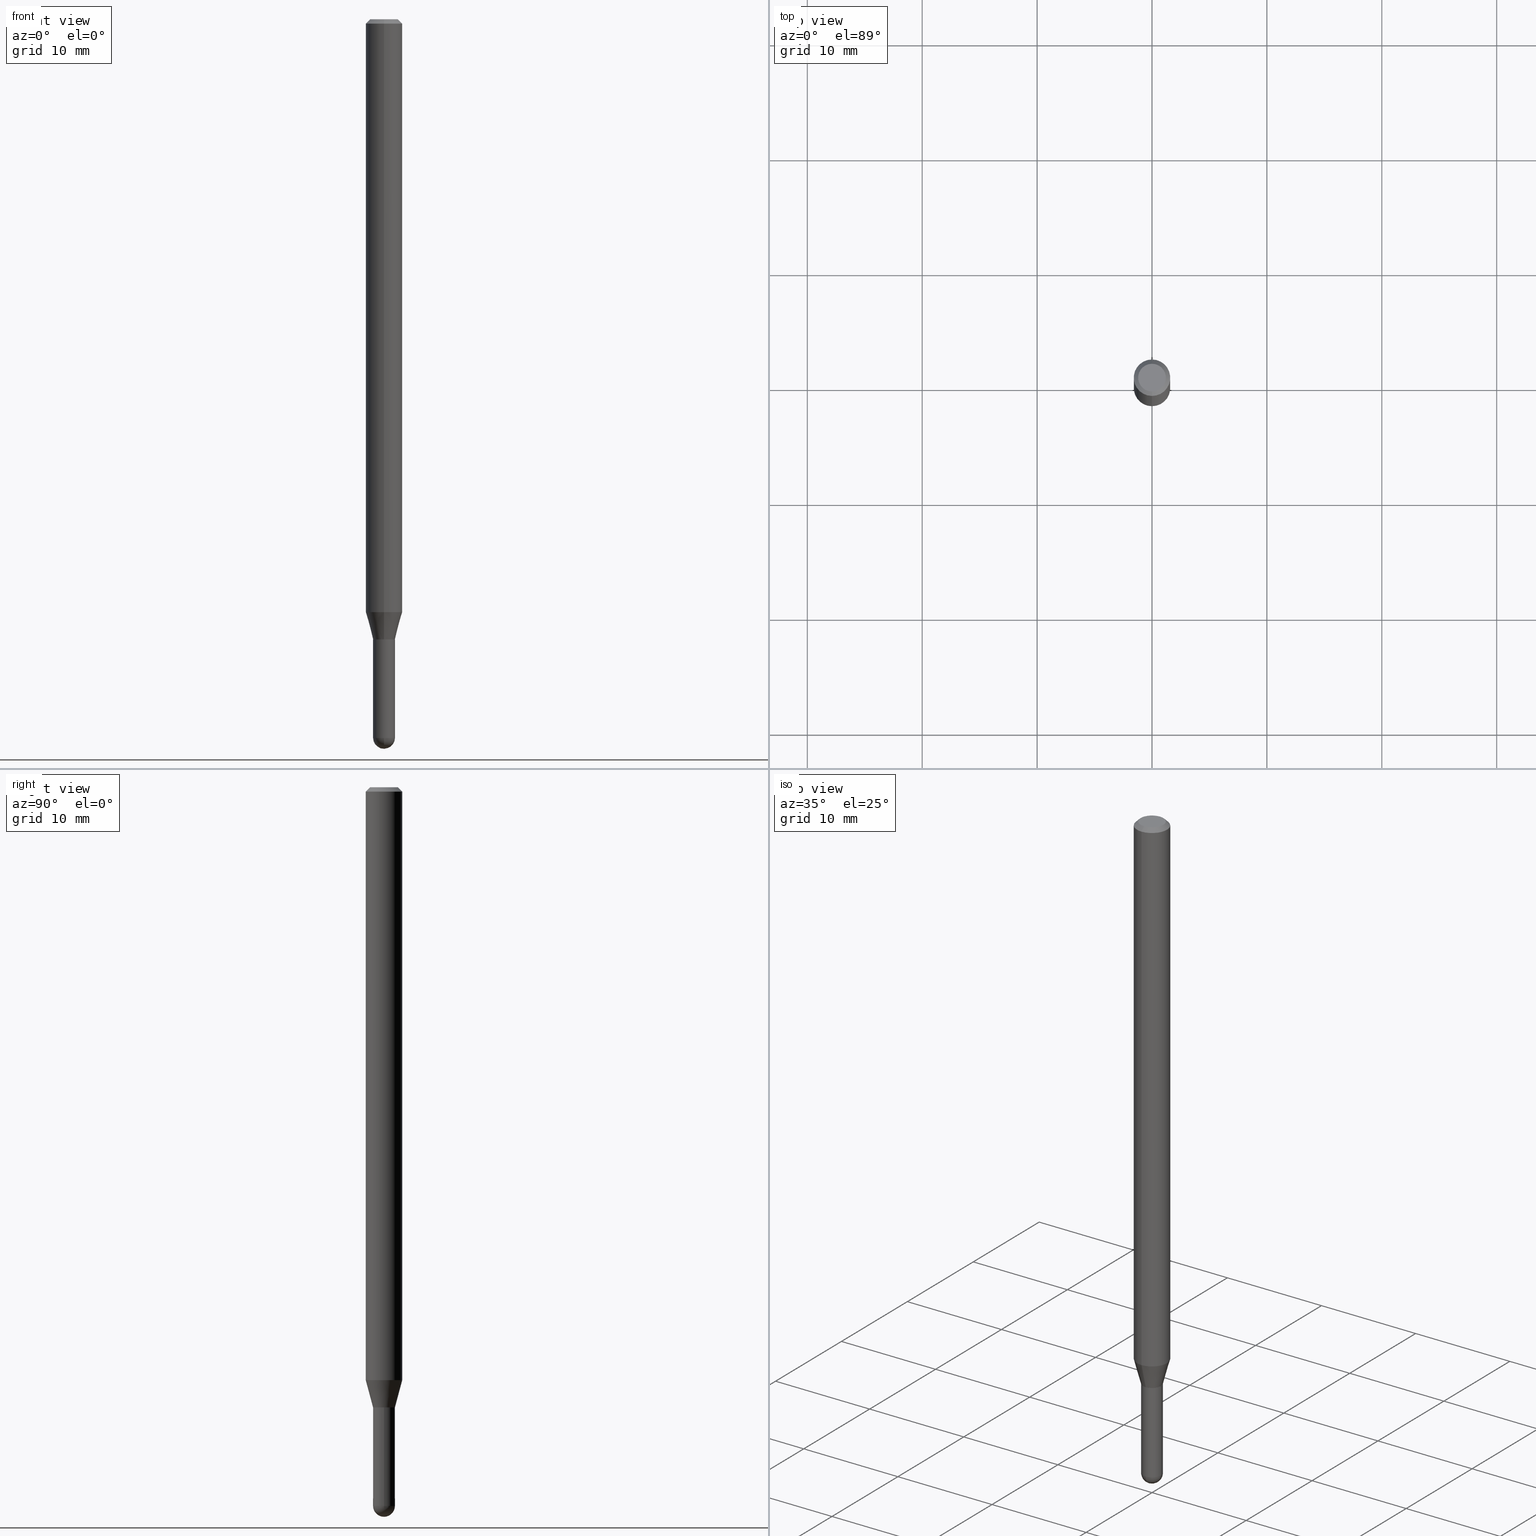
[diagram: canonical four-view strip — front | top / right | iso, engineering-drawing reading convention]
A machine part, canonical four-view strip (front | top / right | iso — engineering-drawing reading convention). The complete STEP part file that produces these views, byte-faithful:
ISO-10303-21;
HEADER;
FILE_DESCRIPTION (( 'STEP AP203' ),
    '1' );
FILE_NAME ('04470.STEP',
    '2024-03-08T19:51:15',
    ( '' ),
    ( '' ),
    'SwSTEP 2.0',
    'SolidWorks 2023',
    '' );
FILE_SCHEMA (( 'CONFIG_CONTROL_DESIGN' ));
ENDSEC;

DATA;
#1 = AXIS2_PLACEMENT_3D ( 'NONE', #271, #395, #276 ) ;
#2 = CARTESIAN_POINT ( 'NONE',  ( 3.316907271900976096E-16, 0.04749999999999999362, -1.985928096986750781E-16 ) ) ;
#3 = ORIENTED_EDGE ( 'NONE', *, *, #273, .F. ) ;
#4 = CYLINDRICAL_SURFACE ( 'NONE', #15, 0.03750000000000005412 ) ;
#5 = SHAPE_DEFINITION_REPRESENTATION ( #138, #70 ) ;
#6 = ORIENTED_EDGE ( 'NONE', *, *, #462, .F. ) ;
#7 = DIRECTION ( 'NONE',  ( -6.982962677686265133E-15, -1.000000000000000000, 0.000000000000000000 ) ) ;
#8 = PERSON_AND_ORGANIZATION_ROLE ( 'classification_officer' ) ;
#9 = VERTEX_POINT ( 'NONE', #422 ) ;
#10 = CIRCLE ( 'NONE', #150, 0.06250000000000000000 ) ;
#11 = ORIENTED_EDGE ( 'NONE', *, *, #103, .T. ) ;
#12 = ORIENTED_EDGE ( 'NONE', *, *, #427, .T. ) ;
#13 = VERTEX_POINT ( 'NONE', #185 ) ;
#14 = CARTESIAN_POINT ( 'NONE',  ( 5.196788090088073163E-29, -7.419158867758890196E-15, -2.125000000000000444 ) ) ;
#15 = AXIS2_PLACEMENT_3D ( 'NONE', #101, #171, #141 ) ;
#16 = CARTESIAN_POINT ( 'NONE',  ( -2.618611004131824438E-16, -0.03750000000000733302, -2.125000000000000000 ) ) ;
#17 = ORIENTED_EDGE ( 'NONE', *, *, #410, .F. ) ;
#18 = FACE_OUTER_BOUND ( 'NONE', #348, .T. ) ;
#19 = DIRECTION ( 'NONE',  ( -6.982962677686266711E-15, -1.000000000000000000, 0.000000000000000000 ) ) ;
#20 = EDGE_LOOP ( 'NONE', ( #89, #132, #6, #368 ) ) ;
#21 = ORIENTED_EDGE ( 'NONE', *, *, #118, .F. ) ;
#22 = DIRECTION ( 'NONE',  ( -4.937700262164674260E-15, -0.7071067811865632269, 0.7071067811865319186 ) ) ;
#23 = CIRCLE ( 'NONE', #298, 0.03699999999999999817 ) ;
#24 = PRODUCT_DEFINITION_FORMATION_WITH_SPECIFIED_SOURCE ( 'ANY', '', #300, .NOT_KNOWN. ) ;
#25 = ORIENTED_EDGE ( 'NONE', *, *, #177, .T. ) ;
#26 = DATE_AND_TIME ( #423, #466 ) ;
#27 = FACE_OUTER_BOUND ( 'NONE', #483, .T. ) ;
#28 = DIRECTION ( 'NONE',  ( -2.445547336512033885E-29, 3.491368878945359605E-15, 1.000000000000000000 ) ) ;
#29 = DIRECTION ( 'NONE',  ( 6.982962677686265922E-15, 1.000000000000000000, -3.483106191921935554E-15 ) ) ;
#30 = LENGTH_MEASURE_WITH_UNIT ( LENGTH_MEASURE( 0.02539999999999999897 ), #316 );
#31 = CIRCLE ( 'NONE', #1, 0.03749999999999991535 ) ;
#32 = DIRECTION ( 'NONE',  ( -2.445468806185136877E-29, 3.491481338843145188E-15, 1.000000000000000000 ) ) ;
#33 = DIRECTION ( 'NONE',  ( -6.982962677686265922E-15, -1.000000000000000000, 0.000000000000000000 ) ) ;
#34 = DIRECTION ( 'NONE',  ( -2.445547336512034446E-29, 3.491368878945359210E-15, 1.000000000000000000 ) ) ;
#35 = DIRECTION ( 'NONE',  ( -1.000000000000000000, 6.982962677686265922E-15, -4.883557194083112901E-29 ) ) ;
#36 = APPROVAL_ROLE ( '' ) ;
#37 = AXIS2_PLACEMENT_3D ( 'NONE', #498, #119, #205 ) ;
#38 = FACE_OUTER_BOUND ( 'NONE', #413, .T. ) ;
#39 = VECTOR ( 'NONE', #126, 39.37007874015748143 ) ;
#40 = PERSON_AND_ORGANIZATION ( #135, #174 ) ;
#41 = DIRECTION ( 'NONE',  ( 6.982962677686265133E-15, 1.000000000000000000, 0.000000000000000000 ) ) ;
#42 = CARTESIAN_POINT ( 'NONE',  ( -4.287811248607203282E-16, -0.06250000000000005551, -0.01499999999999984852 ) ) ;
#43 = CALENDAR_DATE ( 2024, 8, 3 ) ;
#44 = EDGE_LOOP ( 'NONE', ( #297, #128, #151, #377, #136 ) ) ;
#45 = CARTESIAN_POINT ( 'NONE',  ( 5.196788090088073163E-29, -7.419158867758890196E-15, -2.125000000000000444 ) ) ;
#46 = EDGE_LOOP ( 'NONE', ( #21, #253, #147, #315 ) ) ;
#47 = FACE_OUTER_BOUND ( 'NONE', #142, .T. ) ;
#48 = EDGE_CURVE ( 'NONE', #9, #226, #148, .T. ) ;
#49 = ORIENTED_EDGE ( 'NONE', *, *, #508, .T. ) ;
#50 = ORIENTED_EDGE ( 'NONE', *, *, #72, .F. ) ;
#51 = FACE_OUTER_BOUND ( 'NONE', #194, .T. ) ;
#52 = ORIENTED_EDGE ( 'NONE', *, *, #345, .T. ) ;
#53 = PLANE ( 'NONE',  #233 ) ;
#54 = DIRECTION ( 'NONE',  ( -1.000000000000000000, 7.105427357601001070E-15, -4.926315508542082329E-29 ) ) ;
#55 = AXIS2_PLACEMENT_3D ( 'NONE', #83, #246, #7 ) ;
#56 = AXIS2_PLACEMENT_3D ( 'NONE', #366, #482, #378 ) ;
#57 = LINE ( 'NONE', #374, #487 ) ;
#58 = EDGE_CURVE ( 'NONE', #252, #478, #306, .T. ) ;
#59 = FACE_OUTER_BOUND ( 'NONE', #222, .T. ) ;
#60 = DIRECTION ( 'NONE',  ( 4.937700262164548042E-15, 0.7071067811865451302, -0.7071067811865499042 ) ) ;
#61 = DIRECTION ( 'NONE',  ( -6.982962677686265922E-15, -1.000000000000000000, 4.370956789862821150E-15 ) ) ;
#62 = CC_DESIGN_PERSON_AND_ORGANIZATION_ASSIGNMENT ( #468, #504, ( #300 ) ) ;
#63 = ORIENTED_EDGE ( 'NONE', *, *, #279, .F. ) ;
#64 = MECHANICAL_CONTEXT ( 'NONE', #106, 'mechanical' ) ;
#65 = VECTOR ( 'NONE', #309, 39.37007874015748143 ) ;
#66 = AXIS2_PLACEMENT_3D ( 'NONE', #394, #35, #359 ) ;
#67 = CC_DESIGN_APPROVAL ( #295, ( #354 ) ) ;
#68 = VERTEX_POINT ( 'NONE', #102 ) ;
#69 = FACE_OUTER_BOUND ( 'NONE', #46, .T. ) ;
#70 = ADVANCED_BREP_SHAPE_REPRESENTATION ( '04470', ( #181, #182, #95 ), #333 ) ;
#71 = DIRECTION ( 'NONE',  ( -6.982962677686266711E-15, -1.000000000000000000, 3.491368878945359605E-15 ) ) ;
#72 = EDGE_CURVE ( 'NONE', #478, #407, #225, .T. ) ;
#73 = DIRECTION ( 'NONE',  ( -6.982962677686265922E-15, -1.000000000000000000, 3.491368878945359605E-15 ) ) ;
#74 = LINE ( 'NONE', #440, #400 ) ;
#75 = APPLICATION_PROTOCOL_DEFINITION ( 'international standard', 'config_control_design', 1994, #106 ) ;
#76 = CLOSED_SHELL ( 'NONE', ( #212, #100, #296, #193, #200 ) ) ;
#77 = AXIS2_PLACEMENT_3D ( 'NONE', #471, #80, #352 ) ;
#78 = CARTESIAN_POINT ( 'NONE',  ( -2.618611004132353468E-16, -0.03750000000000005412, 1.309263329604511430E-16 ) ) ;
#79 = ADVANCED_FACE ( 'NONE', ( #59 ), #228, .T. ) ;
#80 = DIRECTION ( 'NONE',  ( -2.445547336512034446E-29, 3.491368878945359210E-15, 1.000000000000000000 ) ) ;
#81 = CARTESIAN_POINT ( 'NONE',  ( 0.000000000000000000, 0.000000000000000000, 0.000000000000000000 ) ) ;
#82 = PERSON_AND_ORGANIZATION ( #135, #174 ) ;
#83 = CARTESIAN_POINT ( 'NONE',  ( 5.196788090088073163E-29, -7.419158867758890196E-15, -2.125000000000000444 ) ) ;
#84 = VECTOR ( 'NONE', #292, 39.37007874015748143 ) ;
#85 = APPROVAL_STATUS ( 'not_yet_approved' ) ;
#86 = VECTOR ( 'NONE', #203, 39.37007874015748143 ) ;
#87 = ORIENTED_EDGE ( 'NONE', *, *, #90, .F. ) ;
#88 = DIRECTION ( 'NONE',  ( 1.000000000000000000, -6.982962677686266711E-15, 4.876176775795935793E-29 ) ) ;
#89 = ORIENTED_EDGE ( 'NONE', *, *, #273, .T. ) ;
#90 = EDGE_CURVE ( 'NONE', #252, #169, #416, .T. ) ;
#91 = EDGE_CURVE ( 'NONE', #99, #96, #502, .T. ) ;
#92 = VERTEX_POINT ( 'NONE', #157 ) ;
#93 = ORIENTED_EDGE ( 'NONE', *, *, #177, .F. ) ;
#94 = AXIS2_PLACEMENT_3D ( 'NONE', #187, #54, #403 ) ;
#95 = AXIS2_PLACEMENT_3D ( 'NONE', #111, #195, #387 ) ;
#96 = VERTEX_POINT ( 'NONE', #198 ) ;
#97 = DIRECTION ( 'NONE',  ( -2.445547336512034446E-29, 3.491368878945359210E-15, 1.000000000000000000 ) ) ;
#98 = CARTESIAN_POINT ( 'NONE',  ( 4.440892098501120186E-16, 0.06249999999999287376, -2.031698729810781145 ) ) ;
#99 = VERTEX_POINT ( 'NONE', #510 ) ;
#100 = ADVANCED_FACE ( 'NONE', ( #506 ), #163, .T. ) ;
#101 = CARTESIAN_POINT ( 'NONE',  ( 0.000000000000000000, 0.000000000000000000, 0.000000000000000000 ) ) ;
#102 = CARTESIAN_POINT ( 'NONE',  ( -2.618611004131853034E-16, -0.03750000000000774242, -2.124500000000000277 ) ) ;
#103 = EDGE_CURVE ( 'NONE', #226, #408, #74, .T. ) ;
#104 = AXIS2_PLACEMENT_3D ( 'NONE', #238, #115, #29 ) ;
#105 = APPROVAL_PERSON_ORGANIZATION ( #239, #266, #278 ) ;
#106 = APPLICATION_CONTEXT ( 'configuration controlled 3d designs of mechanical parts and assemblies' ) ;
#107 = ORIENTED_EDGE ( 'NONE', *, *, #170, .F. ) ;
#108 = CARTESIAN_POINT ( 'NONE',  ( 3.668321004768067731E-31, -5.237053318418061988E-17, -0.01500000000000006710 ) ) ;
#109 = ORIENTED_EDGE ( 'NONE', *, *, #161, .F. ) ;
#110 = ORIENTED_EDGE ( 'NONE', *, *, #367, .F. ) ;
#111 = CARTESIAN_POINT ( 'NONE',  ( 0.000000000000000000, 0.000000000000000000, 0.000000000000000000 ) ) ;
#112 = AXIS2_PLACEMENT_3D ( 'NONE', #388, #280, #469 ) ;
#113 = AXIS2_PLACEMENT_3D ( 'NONE', #303, #257, #362 ) ;
#114 = AXIS2_PLACEMENT_3D ( 'NONE', #189, #149, #191 ) ;
#115 = DIRECTION ( 'NONE',  ( 2.445547336512034446E-29, -3.491368878945359210E-15, -1.000000000000000000 ) ) ;
#116 = DIRECTION ( 'NONE',  ( 6.982962677686265922E-15, 1.000000000000000000, -3.483106191921935554E-15 ) ) ;
#117 = ADVANCED_FACE ( 'NONE', ( #465 ), #325, .T. ) ;
#118 = EDGE_CURVE ( 'NONE', #484, #218, #289, .T. ) ;
#119 = DIRECTION ( 'NONE',  ( -2.445468806185136597E-29, 3.491481338843145583E-15, 1.000000000000000000 ) ) ;
#120 = APPROVAL_STATUS ( 'not_yet_approved' ) ;
#121 = CARTESIAN_POINT ( 'NONE',  ( 6.112068578670630349E-29, -8.730999559856264176E-15, -2.500000000000000000 ) ) ;
#122 = LOCAL_TIME ( 14, 51, 15.00000000000000000, #512 ) ;
#123 = CARTESIAN_POINT ( 'NONE',  ( 1.601969866629184356E-45, -2.287041290860680878E-31, -6.550557589754105084E-17 ) ) ;
#124 = DIRECTION ( 'NONE',  ( -6.982962677686265922E-15, -1.000000000000000000, 3.491368878945359210E-15 ) ) ;
#125 = CALENDAR_DATE ( 2024, 8, 3 ) ;
#126 = DIRECTION ( 'NONE',  ( -1.807323732225382204E-15, -0.2588190451025256245, 0.9659258262890669799 ) ) ;
#127 = PERSON_AND_ORGANIZATION ( #135, #174 ) ;
#128 = ORIENTED_EDGE ( 'NONE', *, *, #265, .T. ) ;
#129 = CIRCLE ( 'NONE', #419, 0.06250000000000000000 ) ;
#130 = CARTESIAN_POINT ( 'NONE',  ( -0.03749999999999999861, -7.742131795061429304E-15, -2.125000000000000000 ) ) ;
#131 = CC_DESIGN_APPROVAL ( #428, ( #24 ) ) ;
#132 = ORIENTED_EDGE ( 'NONE', *, *, #91, .T. ) ;
#133 = VERTEX_POINT ( 'NONE', #441 ) ;
#134 = VERTEX_POINT ( 'NONE', #121 ) ;
#135 = PERSON ( 'UNSPECIFIED', 'UNSPECIFIED', 'UNSPECIFIED', ('UNSPECIFIED'), ('UNSPECIFIED'), ('UNSPECIFIED') ) ;
#136 = ORIENTED_EDGE ( 'NONE', *, *, #503, .F. ) ;
#137 = AXIS2_PLACEMENT_3D ( 'NONE', #397, #166, #234 ) ;
#138 = PRODUCT_DEFINITION_SHAPE ( 'NONE', 'NONE',  #357 ) ;
#139 = CARTESIAN_POINT ( 'NONE',  ( -0.03749999999999999861, -7.742131795061429304E-15, -2.462500000000000355 ) ) ;
#140 = ORIENTED_EDGE ( 'NONE', *, *, #118, .T. ) ;
#141 = DIRECTION ( 'NONE',  ( -6.982962677686265922E-15, -1.000000000000000000, 3.491368878945358816E-15 ) ) ;
#142 = EDGE_LOOP ( 'NONE', ( #304, #11, #379, #347 ) ) ;
#143 = EDGE_CURVE ( 'NONE', #486, #252, #199, .T. ) ;
#144 = ADVANCED_FACE ( 'NONE', ( #356 ), #209, .T. ) ;
#145 = LINE ( 'NONE', #42, #192 ) ;
#146 = ADVANCED_FACE ( 'NONE', ( #429 ), #236, .F. ) ;
#147 = ORIENTED_EDGE ( 'NONE', *, *, #433, .T. ) ;
#148 = CIRCLE ( 'NONE', #436, 0.06250000000000000000 ) ;
#149 = DIRECTION ( 'NONE',  ( -2.445547336512034446E-29, 3.491368878945359210E-15, 1.000000000000000000 ) ) ;
#150 = AXIS2_PLACEMENT_3D ( 'NONE', #108, #97, #152 ) ;
#151 = ORIENTED_EDGE ( 'NONE', *, *, #143, .T. ) ;
#152 = DIRECTION ( 'NONE',  ( -6.982962677686265922E-15, -1.000000000000000000, 3.483106191921935554E-15 ) ) ;
#153 = DIRECTION ( 'NONE',  ( 1.000000000000000000, -6.982962677686265922E-15, 4.883557194083112340E-29 ) ) ;
#154 = EDGE_CURVE ( 'NONE', #223, #407, #160, .T. ) ;
#155 = ORIENTED_EDGE ( 'NONE', *, *, #170, .T. ) ;
#156 = DIRECTION ( 'NONE',  ( -6.982962677686265922E-15, -1.000000000000000000, 3.491368878945359210E-15 ) ) ;
#157 = CARTESIAN_POINT ( 'NONE',  ( 3.552713678801006984E-16, 0.03749999999999249767, -2.125000000000000000 ) ) ;
#158 = CC_DESIGN_PERSON_AND_ORGANIZATION_ASSIGNMENT ( #127, #330, ( #24 ) ) ;
#159 = AXIS2_PLACEMENT_3D ( 'NONE', #432, #320, #426 ) ;
#160 = LINE ( 'NONE', #326, #479 ) ;
#161 = EDGE_CURVE ( 'NONE', #169, #223, #464, .T. ) ;
#162 = CC_DESIGN_DATE_AND_TIME_ASSIGNMENT ( #26, #364, ( #357 ) ) ;
#163 = SPHERICAL_SURFACE ( 'NONE', #112, 0.03749999999999990841 ) ;
#164 = CALENDAR_DATE ( 2024, 8, 3 ) ;
#165 = DIRECTION ( 'NONE',  ( 1.000000000000000000, -6.982962677686242256E-15, 0.000000000000000000 ) ) ;
#166 = DIRECTION ( 'NONE',  ( -2.445468806185136597E-29, 3.491481338843145583E-15, 1.000000000000000000 ) ) ;
#167 = COORDINATED_UNIVERSAL_TIME_OFFSET ( 5, 0, .BEHIND. ) ;
#168 = DIRECTION ( 'NONE',  ( -2.445547336512034446E-29, 3.491368878945359210E-15, 1.000000000000000000 ) ) ;
#169 = VERTEX_POINT ( 'NONE', #473 ) ;
#170 = EDGE_CURVE ( 'NONE', #133, #68, #283, .T. ) ;
#171 = DIRECTION ( 'NONE',  ( -2.445547336512034446E-29, 3.491368878945359210E-15, 1.000000000000000000 ) ) ;
#172 = ORIENTED_EDGE ( 'NONE', *, *, #490, .T. ) ;
#173 = CARTESIAN_POINT ( 'NONE',  ( 5.196788090088073163E-29, -7.419158867758890196E-15, -2.125000000000000444 ) ) ;
#174 = ORGANIZATION ( 'UNSPECIFIED', 'UNSPECIFIED', '' ) ;
#175 = CALENDAR_DATE ( 2024, 8, 3 ) ;
#176 = ORIENTED_EDGE ( 'NONE', *, *, #427, .F. ) ;
#177 = EDGE_CURVE ( 'NONE', #218, #484, #444, .T. ) ;
#178 = EDGE_LOOP ( 'NONE', ( #17, #475, #262, #109 ) ) ;
#179 = CC_DESIGN_PERSON_AND_ORGANIZATION_ASSIGNMENT ( #314, #461, ( #357 ) ) ;
#180 = ORIENTED_EDGE ( 'NONE', *, *, #251, .T. ) ;
#181 = MANIFOLD_SOLID_BREP ( 'Body-Move/Copy2[1]', #76 ) ;
#182 = MANIFOLD_SOLID_BREP ( 'Body-Move/Copy2[2]', #369 ) ;
#183 = CIRCLE ( 'NONE', #94, 0.03749999999999990841 ) ;
#184 = DIRECTION ( 'NONE',  ( -6.982962677686265133E-15, -1.000000000000000000, 0.000000000000000000 ) ) ;
#185 = CARTESIAN_POINT ( 'NONE',  ( -2.583696190743398311E-16, -0.03700000000000741585, -2.125000000000000444 ) ) ;
#186 = DIRECTION ( 'NONE',  ( -6.982962677686265922E-15, -1.000000000000000000, 0.000000000000000000 ) ) ;
#187 = CARTESIAN_POINT ( 'NONE',  ( 6.018760061646477031E-29, -8.602365222398048274E-15, -2.462500000000000355 ) ) ;
#188 = ORIENTED_EDGE ( 'NONE', *, *, #503, .T. ) ;
#189 = CARTESIAN_POINT ( 'NONE',  ( 5.196788090088073163E-29, -7.419158867758888618E-15, -2.125000000000000000 ) ) ;
#190 = CC_DESIGN_DATE_AND_TIME_ASSIGNMENT ( #211, #243, ( #354 ) ) ;
#191 = DIRECTION ( 'NONE',  ( -6.982962677686266711E-15, -1.000000000000000000, 0.000000000000000000 ) ) ;
#192 = VECTOR ( 'NONE', #224, 39.37007874015748143 ) ;
#193 = ADVANCED_FACE ( 'NONE', ( #27 ), #196, .T. ) ;
#194 = EDGE_LOOP ( 'NONE', ( #3, #63 ) ) ;
#195 = DIRECTION ( 'NONE',  ( 0.000000000000000000, 0.000000000000000000, 1.000000000000000000 ) ) ;
#196 = SPHERICAL_SURFACE ( 'NONE', #66, 0.03749999999999990841 ) ;
#197 = CARTESIAN_POINT ( 'NONE',  ( 5.195565316419817148E-29, -7.417413183319418007E-15, -2.124500000000000277 ) ) ;
#198 = CARTESIAN_POINT ( 'NONE',  ( 2.664535259100899205E-16, 0.03749999999999264338, -2.124500000000000277 ) ) ;
#199 = CIRCLE ( 'NONE', #137, 0.03749999999999999861 ) ;
#200 = ADVANCED_FACE ( 'NONE', ( #350 ), #322, .T. ) ;
#201 = CONICAL_SURFACE ( 'NONE', #310, 0.03699999999999999817, 0.7853981633974739252 ) ;
#202 = CARTESIAN_POINT ( 'NONE',  ( 6.021966935230899318E-29, -8.597772796901246653E-15, -2.462500000000000355 ) ) ;
#203 = DIRECTION ( 'NONE',  ( -2.445547336512034446E-29, 3.491368878945359605E-15, 1.000000000000000000 ) ) ;
#204 = CC_DESIGN_PERSON_AND_ORGANIZATION_ASSIGNMENT ( #327, #247, ( #24 ) ) ;
#205 = DIRECTION ( 'NONE',  ( 1.000000000000000000, -6.982962677686242256E-15, 0.000000000000000000 ) ) ;
#206 = DIRECTION ( 'NONE',  ( -6.982962677686266711E-15, -1.000000000000000000, 3.491368878945359605E-15 ) ) ;
#207 = APPROVAL_DATE_TIME ( #287, #428 ) ;
#208 = AXIS2_PLACEMENT_3D ( 'NONE', #230, #421, #380 ) ;
#209 = CONICAL_SURFACE ( 'NONE', #511, 0.03749999999999991535, 0.2617993877991579565 ) ;
#210 = DIRECTION ( 'NONE',  ( -2.445547336512034446E-29, 3.491368878945359210E-15, 1.000000000000000000 ) ) ;
#211 = DATE_AND_TIME ( #43, #122 ) ;
#212 = ADVANCED_FACE ( 'NONE', ( #308 ), #417, .T. ) ;
#213 = FACE_OUTER_BOUND ( 'NONE', #267, .T. ) ;
#214 = APPROVAL_DATE_TIME ( #360, #295 ) ;
#215 = ORIENTED_EDGE ( 'NONE', *, *, #449, .T. ) ;
#216 = DIRECTION ( 'NONE',  ( 2.445547336512033885E-29, -3.491368878945359605E-15, -1.000000000000000000 ) ) ;
#217 = EDGE_CURVE ( 'NONE', #226, #9, #375, .T. ) ;
#218 = VERTEX_POINT ( 'NONE', #286 ) ;
#219 = VECTOR ( 'NONE', #60, 39.37007874015748143 ) ;
#220 = AXIS2_PLACEMENT_3D ( 'NONE', #231, #499, #116 ) ;
#221 = EDGE_LOOP ( 'NONE', ( #425, #373, #50, #443, #448 ) ) ;
#222 = EDGE_LOOP ( 'NONE', ( #338, #264, #49, #176 ) ) ;
#223 = VERTEX_POINT ( 'NONE', #139 ) ;
#224 = DIRECTION ( 'NONE',  ( -4.851104656540964275E-15, -0.7071067811865500152, -0.7071067811865450192 ) ) ;
#225 = CIRCLE ( 'NONE', #208, 0.03749999999999999861 ) ;
#226 = VERTEX_POINT ( 'NONE', #98 ) ;
#227 = DIRECTION ( 'NONE',  ( 1.000000000000000000, -6.982962677686242256E-15, 0.000000000000000000 ) ) ;
#228 = CYLINDRICAL_SURFACE ( 'NONE', #270, 0.06250000000000000000 ) ;
#229 = DIRECTION ( 'NONE',  ( -2.445547336512034446E-29, 3.491368878945359210E-15, 1.000000000000000000 ) ) ;
#230 = CARTESIAN_POINT ( 'NONE',  ( 5.196621213143415268E-29, -7.419397845041685201E-15, -2.125000000000000000 ) ) ;
#231 = CARTESIAN_POINT ( 'NONE',  ( 3.668321004768067731E-31, -5.237053318418061988E-17, -0.01500000000000006710 ) ) ;
#232 = CIRCLE ( 'NONE', #282, 0.03750000000000019290 ) ;
#233 = AXIS2_PLACEMENT_3D ( 'NONE', #14, #28, #73 ) ;
#234 = DIRECTION ( 'NONE',  ( 1.000000000000000000, -6.982962677686242256E-15, 0.000000000000000000 ) ) ;
#235 =( NAMED_UNIT ( * ) PLANE_ANGLE_UNIT ( ) SI_UNIT ( $, .RADIAN. ) );
#236 = CYLINDRICAL_SURFACE ( 'NONE', #77, 0.03750000000000005412 ) ;
#237 =( NAMED_UNIT ( * ) SI_UNIT ( $, .STERADIAN. ) SOLID_ANGLE_UNIT ( ) );
#238 = CARTESIAN_POINT ( 'NONE',  ( 3.668321004768067731E-31, -5.237053318418061988E-17, -0.01500000000000006710 ) ) ;
#239 = PERSON_AND_ORGANIZATION ( #135, #174 ) ;
#240 = ADVANCED_FACE ( 'NONE', ( #442 ), #259, .F. ) ;
#241 = CARTESIAN_POINT ( 'NONE',  ( 0.000000000000000000, 0.000000000000000000, 0.000000000000000000 ) ) ;
#242 = CARTESIAN_POINT ( 'NONE',  ( 1.601969866629184356E-45, -2.287041290860680878E-31, -6.550557589754105084E-17 ) ) ;
#243 = DATE_TIME_ROLE ( 'classification_date' ) ;
#244 = DIRECTION ( 'NONE',  ( -6.982962677686265133E-15, -1.000000000000000000, 0.000000000000000000 ) ) ;
#245 = AXIS2_PLACEMENT_3D ( 'NONE', #2, #216, #328 ) ;
#246 = DIRECTION ( 'NONE',  ( -2.445547336512034446E-29, 3.491368878945359210E-15, 1.000000000000000000 ) ) ;
#247 = PERSON_AND_ORGANIZATION_ROLE ( 'design_supplier' ) ;
#248 = DIRECTION ( 'NONE',  ( -2.445468806185136597E-29, 3.491481338843145583E-15, 1.000000000000000000 ) ) ;
#249 = APPROVAL_STATUS ( 'not_yet_approved' ) ;
#250 = ORIENTED_EDGE ( 'NONE', *, *, #410, .T. ) ;
#251 = EDGE_CURVE ( 'NONE', #92, #96, #57, .T. ) ;
#252 = VERTEX_POINT ( 'NONE', #493 ) ;
#253 = ORIENTED_EDGE ( 'NONE', *, *, #367, .T. ) ;
#254 = CARTESIAN_POINT ( 'NONE',  ( -3.773273898774340269E-16, -0.04749999999999999362, 1.003344458523634895E-16 ) ) ;
#255 = ORIENTED_EDGE ( 'NONE', *, *, #462, .T. ) ;
#256 = LINE ( 'NONE', #414, #219 ) ;
#257 = DIRECTION ( 'NONE',  ( 2.438088387897960049E-29, -3.491481338843145188E-15, -1.000000000000000000 ) ) ;
#258 = ORIENTED_EDGE ( 'NONE', *, *, #342, .F. ) ;
#259 = PLANE ( 'NONE',  #245 ) ;
#260 = EDGE_CURVE ( 'NONE', #133, #9, #474, .T. ) ;
#261 = AXIS2_PLACEMENT_3D ( 'NONE', #202, #437, #165 ) ;
#262 = ORIENTED_EDGE ( 'NONE', *, *, #265, .F. ) ;
#263 = APPROVAL_PERSON_ORGANIZATION ( #82, #295, #398 ) ;
#264 = ORIENTED_EDGE ( 'NONE', *, *, #217, .T. ) ;
#265 = EDGE_CURVE ( 'NONE', #223, #486, #382, .T. ) ;
#266 = APPROVAL ( #120, 'UNSPECIFIED' ) ;
#267 = EDGE_LOOP ( 'NONE', ( #371, #188 ) ) ;
#268 = COORDINATED_UNIVERSAL_TIME_OFFSET ( 5, 0, .BEHIND. ) ;
#269 = ORIENTED_EDGE ( 'NONE', *, *, #501, .F. ) ;
#270 = AXIS2_PLACEMENT_3D ( 'NONE', #277, #285, #124 ) ;
#271 = CARTESIAN_POINT ( 'NONE',  ( 5.196788090088073163E-29, -7.419158867758888618E-15, -2.125000000000000000 ) ) ;
#272 = AXIS2_PLACEMENT_3D ( 'NONE', #81, #334, #88 ) ;
#273 = EDGE_CURVE ( 'NONE', #13, #99, #23, .T. ) ;
#274 = CYLINDRICAL_SURFACE ( 'NONE', #290, 0.06250000000000000000 ) ;
#275 = DIRECTION ( 'NONE',  ( -2.445547336512034446E-29, 3.491368878945359210E-15, 1.000000000000000000 ) ) ;
#276 = DIRECTION ( 'NONE',  ( -6.982962677686266711E-15, -1.000000000000000000, 0.000000000000000000 ) ) ;
#277 = CARTESIAN_POINT ( 'NONE',  ( 0.000000000000000000, 0.000000000000000000, 0.000000000000000000 ) ) ;
#278 = APPROVAL_ROLE ( '' ) ;
#279 = EDGE_CURVE ( 'NONE', #99, #13, #332, .T. ) ;
#280 = DIRECTION ( 'NONE',  ( -1.000000000000000000, 6.982962677686265922E-15, -4.883557194083112901E-29 ) ) ;
#281 = DIRECTION ( 'NONE',  ( -6.982962677686265133E-15, -1.000000000000000000, 0.000000000000000000 ) ) ;
#282 = AXIS2_PLACEMENT_3D ( 'NONE', #339, #229, #186 ) ;
#283 = LINE ( 'NONE', #78, #353 ) ;
#284 = PERSON_AND_ORGANIZATION ( #135, #174 ) ;
#285 = DIRECTION ( 'NONE',  ( -2.445547336512034446E-29, 3.491368878945359210E-15, 1.000000000000000000 ) ) ;
#286 = CARTESIAN_POINT ( 'NONE',  ( 3.840629472727447874E-16, 0.04749999999999999362, -2.313455976474456035E-16 ) ) ;
#287 = DATE_AND_TIME ( #125, #370 ) ;
#288 = ORIENTED_EDGE ( 'NONE', *, *, #260, .T. ) ;
#289 = CIRCLE ( 'NONE', #409, 0.04749999999999999362 ) ;
#290 = AXIS2_PLACEMENT_3D ( 'NONE', #434, #335, #156 ) ;
#291 = AXIS2_PLACEMENT_3D ( 'NONE', #305, #406, #227 ) ;
#292 = DIRECTION ( 'NONE',  ( 1.839019923739653169E-15, 0.2588190451025323968, 0.9659258262890650926 ) ) ;
#293 = ORIENTED_EDGE ( 'NONE', *, *, #307, .F. ) ;
#294 = ADVANCED_FACE ( 'NONE', ( #340 ), #457, .T. ) ;
#295 = APPROVAL ( #249, 'UNSPECIFIED' ) ;
#296 = ADVANCED_FACE ( 'NONE', ( #213 ), #399, .F. ) ;
#297 = ORIENTED_EDGE ( 'NONE', *, *, #154, .F. ) ;
#298 = AXIS2_PLACEMENT_3D ( 'NONE', #45, #210, #184 ) ;
#299 = LOCAL_TIME ( 14, 51, 15.00000000000000000, #355 ) ;
#300 = PRODUCT ( '04470', '04470', '', ( #64 ) ) ;
#301 = ORIENTED_EDGE ( 'NONE', *, *, #91, .F. ) ;
#302 = DIRECTION ( 'NONE',  ( -2.445547336512034446E-29, 3.491368878945359210E-15, 1.000000000000000000 ) ) ;
#303 = CARTESIAN_POINT ( 'NONE',  ( 2.618611004132869186E-16, 0.03749999999999258093, -2.125000000000000000 ) ) ;
#304 = ORIENTED_EDGE ( 'NONE', *, *, #48, .T. ) ;
#305 = CARTESIAN_POINT ( 'NONE',  ( 6.021966935230899318E-29, -8.597772796901246653E-15, -2.462500000000000355 ) ) ;
#306 = LINE ( 'NONE', #455, #65 ) ;
#307 = EDGE_CURVE ( 'NONE', #92, #133, #319, .T. ) ;
#308 = FACE_OUTER_BOUND ( 'NONE', #221, .T. ) ;
#309 = DIRECTION ( 'NONE',  ( -2.445468806185136877E-29, 3.491481338843145188E-15, 1.000000000000000000 ) ) ;
#310 = AXIS2_PLACEMENT_3D ( 'NONE', #384, #358, #281 ) ;
#311 = LINE ( 'NONE', #459, #346 ) ;
#312 = DESIGN_CONTEXT ( 'detailed design', #431, 'design' ) ;
#313 = ORIENTED_EDGE ( 'NONE', *, *, #251, .F. ) ;
#314 = PERSON_AND_ORGANIZATION ( #135, #174 ) ;
#315 = ORIENTED_EDGE ( 'NONE', *, *, #449, .F. ) ;
#316 =( LENGTH_UNIT ( ) NAMED_UNIT ( * ) SI_UNIT ( $, .METRE. ) );
#317 = CARTESIAN_POINT ( 'NONE',  ( 2.629008122312889727E-16, 0.03699999999999257355, -2.125000000000000444 ) ) ;
#318 = CARTESIAN_POINT ( 'NONE',  ( -4.364351673553916201E-16, -0.06250000000000000000, 2.182105549340849507E-16 ) ) ;
#319 = CIRCLE ( 'NONE', #401, 0.03749999999999991535 ) ;
#320 = DIRECTION ( 'NONE',  ( -2.445468806185136597E-29, 3.491481338843145583E-15, 1.000000000000000000 ) ) ;
#321 = DIMENSIONAL_EXPONENTS ( 1.000000000000000000, 0.000000000000000000, 0.000000000000000000, 0.000000000000000000, 0.000000000000000000, 0.000000000000000000, 0.000000000000000000 ) ;
#322 = CYLINDRICAL_SURFACE ( 'NONE', #424, 0.03749999999999999861 ) ;
#323 = DATE_AND_TIME ( #164, #299 ) ;
#324 = DIRECTION ( 'NONE',  ( -2.445547336512034446E-29, 3.491368878945359605E-15, 1.000000000000000000 ) ) ;
#325 = CONICAL_SURFACE ( 'NONE', #104, 0.06250000000000000000, 0.7853981633974483900 ) ;
#326 = CARTESIAN_POINT ( 'NONE',  ( -0.03749999999999999861, 2.664535259100375598E-16, -1.844600658845589808E-30 ) ) ;
#327 = PERSON_AND_ORGANIZATION ( #135, #174 ) ;
#328 = DIRECTION ( 'NONE',  ( 6.982962677686265922E-15, 1.000000000000000000, -3.491368878945359605E-15 ) ) ;
#329 = DIRECTION ( 'NONE',  ( -2.445547336512034446E-29, 3.491368878945359210E-15, 1.000000000000000000 ) ) ;
#330 = PERSON_AND_ORGANIZATION_ROLE ( 'creator' ) ;
#331 = VERTEX_POINT ( 'NONE', #415 ) ;
#332 = CIRCLE ( 'NONE', #55, 0.03699999999999999817 ) ;
#333 =( GEOMETRIC_REPRESENTATION_CONTEXT ( 3 ) GLOBAL_UNCERTAINTY_ASSIGNED_CONTEXT ( ( #385 ) ) GLOBAL_UNIT_ASSIGNED_CONTEXT ( ( #507, #235, #237 ) ) REPRESENTATION_CONTEXT ( 'NONE', 'WORKASPACE' ) );
#334 = DIRECTION ( 'NONE',  ( -2.445468806185136597E-29, 3.491481338843145583E-15, 1.000000000000000000 ) ) ;
#335 = DIRECTION ( 'NONE',  ( -2.445547336512034446E-29, 3.491368878945359210E-15, 1.000000000000000000 ) ) ;
#336 = EDGE_LOOP ( 'NONE', ( #25, #140 ) ) ;
#337 = VECTOR ( 'NONE', #430, 39.37007874015748143 ) ;
#338 = ORIENTED_EDGE ( 'NONE', *, *, #103, .F. ) ;
#339 = CARTESIAN_POINT ( 'NONE',  ( 5.195565316419817148E-29, -7.417413183319418007E-15, -2.124500000000000277 ) ) ;
#340 = FACE_OUTER_BOUND ( 'NONE', #20, .T. ) ;
#341 = EDGE_LOOP ( 'NONE', ( #110, #93, #215, #12 ) ) ;
#342 = EDGE_CURVE ( 'NONE', #134, #486, #183, .T. ) ;
#343 = CARTESIAN_POINT ( 'NONE',  ( 2.664535259100888851E-16, 0.03749999999999249767, -2.125000000000000000 ) ) ;
#344 = DIRECTION ( 'NONE',  ( -2.445547336512034446E-29, 3.491368878945359210E-15, 1.000000000000000000 ) ) ;
#345 = EDGE_CURVE ( 'NONE', #92, #226, #491, .T. ) ;
#346 = VECTOR ( 'NONE', #22, 39.37007874015748143 ) ;
#347 = ORIENTED_EDGE ( 'NONE', *, *, #508, .F. ) ;
#348 = EDGE_LOOP ( 'NONE', ( #453, #52, #365, #497 ) ) ;
#349 = DIRECTION ( 'NONE',  ( -2.445547336512034446E-29, 3.491368878945359210E-15, 1.000000000000000000 ) ) ;
#350 = FACE_OUTER_BOUND ( 'NONE', #44, .T. ) ;
#351 = APPLICATION_PROTOCOL_DEFINITION ( 'international standard', 'config_control_design', 1994, #431 ) ;
#352 = DIRECTION ( 'NONE',  ( -6.982962677686265922E-15, -1.000000000000000000, 3.491368878945358816E-15 ) ) ;
#353 = VECTOR ( 'NONE', #324, 39.37007874015748143 ) ;
#354 = SECURITY_CLASSIFICATION ( '', '', #404 ) ;
#355 = COORDINATED_UNIVERSAL_TIME_OFFSET ( 5, 0, .BEHIND. ) ;
#356 = FACE_OUTER_BOUND ( 'NONE', #463, .T. ) ;
#357 = PRODUCT_DEFINITION ( 'UNKNOWN', '', #24, #312 ) ;
#358 = DIRECTION ( 'NONE',  ( -2.445547336512034446E-29, 3.491368878945359210E-15, 1.000000000000000000 ) ) ;
#359 = DIRECTION ( 'NONE',  ( 6.982962677686265922E-15, 1.000000000000000000, 0.000000000000000000 ) ) ;
#360 = DATE_AND_TIME ( #175, #361 ) ;
#361 = LOCAL_TIME ( 14, 51, 15.00000000000000000, #477 ) ;
#362 = DIRECTION ( 'NONE',  ( -1.000000000000000000, 6.982962677686265922E-15, -4.876176775795935793E-29 ) ) ;
#363 = DIRECTION ( 'NONE',  ( -2.445547336512034446E-29, 3.491368878945359605E-15, 1.000000000000000000 ) ) ;
#364 = DATE_TIME_ROLE ( 'creation_date' ) ;
#365 = ORIENTED_EDGE ( 'NONE', *, *, #48, .F. ) ;
#366 = CARTESIAN_POINT ( 'NONE',  ( 4.968615417283638285E-29, -7.093409716654176905E-15, -2.031698729810781145 ) ) ;
#367 = EDGE_CURVE ( 'NONE', #484, #331, #145, .T. ) ;
#368 = ORIENTED_EDGE ( 'NONE', *, *, #485, .F. ) ;
#369 = CLOSED_SHELL ( 'NONE', ( #390, #294, #505, #418, #481, #144, #79, #117, #240, #488, #496, #146 ) ) ;
#370 = LOCAL_TIME ( 14, 51, 15.00000000000000000, #167 ) ;
#371 = ORIENTED_EDGE ( 'NONE', *, *, #72, .T. ) ;
#372 = EDGE_LOOP ( 'NONE', ( #301, #460, #451, #495 ) ) ;
#373 = ORIENTED_EDGE ( 'NONE', *, *, #154, .T. ) ;
#374 = CARTESIAN_POINT ( 'NONE',  ( 2.664535259100379050E-16, 0.03750000000000005412, -1.309263329604511430E-16 ) ) ;
#375 = CIRCLE ( 'NONE', #56, 0.06250000000000000000 ) ;
#376 = CIRCLE ( 'NONE', #159, 0.03749999999999999861 ) ;
#377 = ORIENTED_EDGE ( 'NONE', *, *, #58, .T. ) ;
#378 = DIRECTION ( 'NONE',  ( -6.982962677686265922E-15, -1.000000000000000000, 4.370956789862821150E-15 ) ) ;
#379 = ORIENTED_EDGE ( 'NONE', *, *, #433, .F. ) ;
#380 = DIRECTION ( 'NONE',  ( 1.000000000000000000, -6.982962677686268288E-15, 0.000000000000000000 ) ) ;
#381 = CARTESIAN_POINT ( 'NONE',  ( 0.03749999999999999861, -7.681258945454920203E-15, -2.125000000000000000 ) ) ;
#382 = CIRCLE ( 'NONE', #291, 0.03749999999999999861 ) ;
#383 = APPROVAL_PERSON_ORGANIZATION ( #40, #428, #36 ) ;
#384 = CARTESIAN_POINT ( 'NONE',  ( 5.196788090088073163E-29, -7.419158867758890196E-15, -2.125000000000000444 ) ) ;
#385 = UNCERTAINTY_MEASURE_WITH_UNIT (LENGTH_MEASURE( 1.000000000000000082E-05 ), #507, 'distance_accuracy_value', 'NONE');
#386 = DIRECTION ( 'NONE',  ( -2.445547336512034446E-29, 3.491368878945359210E-15, 1.000000000000000000 ) ) ;
#387 = DIRECTION ( 'NONE',  ( 1.000000000000000000, 0.000000000000000000, 0.000000000000000000 ) ) ;
#388 = CARTESIAN_POINT ( 'NONE',  ( 6.018760061646477031E-29, -8.602365222398048274E-15, -2.462500000000000355 ) ) ;
#389 = PRODUCT_RELATED_PRODUCT_CATEGORY ( 'detail', '', ( #300 ) ) ;
#390 = ADVANCED_FACE ( 'NONE', ( #38 ), #4, .F. ) ;
#391 = DIRECTION ( 'NONE',  ( -6.982962677686266711E-15, -1.000000000000000000, 0.000000000000000000 ) ) ;
#392 = AXIS2_PLACEMENT_3D ( 'NONE', #173, #168, #244 ) ;
#393 = FACE_OUTER_BOUND ( 'NONE', #372, .T. ) ;
#394 = CARTESIAN_POINT ( 'NONE',  ( 6.018760061646477031E-29, -8.602365222398048274E-15, -2.462500000000000355 ) ) ;
#395 = DIRECTION ( 'NONE',  ( -2.445547336512034446E-29, 3.491368878945359210E-15, 1.000000000000000000 ) ) ;
#396 = CC_DESIGN_PERSON_AND_ORGANIZATION_ASSIGNMENT ( #284, #8, ( #354 ) ) ;
#397 = CARTESIAN_POINT ( 'NONE',  ( 6.021966935230899318E-29, -8.597772796901246653E-15, -2.462500000000000355 ) ) ;
#398 = APPROVAL_ROLE ( '' ) ;
#399 = PLANE ( 'NONE',  #113 ) ;
#400 = VECTOR ( 'NONE', #467, 39.37007874015748143 ) ;
#401 = AXIS2_PLACEMENT_3D ( 'NONE', #452, #329, #19 ) ;
#402 = CC_DESIGN_APPROVAL ( #266, ( #357 ) ) ;
#403 = DIRECTION ( 'NONE',  ( -7.105427357601000281E-15, -1.000000000000000000, 0.000000000000000000 ) ) ;
#404 = SECURITY_CLASSIFICATION_LEVEL ( 'unclassified' ) ;
#405 = ORIENTED_EDGE ( 'NONE', *, *, #345, .F. ) ;
#406 = DIRECTION ( 'NONE',  ( -2.445468806185136597E-29, 3.491481338843145583E-15, 1.000000000000000000 ) ) ;
#407 = VERTEX_POINT ( 'NONE', #130 ) ;
#408 = VERTEX_POINT ( 'NONE', #446 ) ;
#409 = AXIS2_PLACEMENT_3D ( 'NONE', #123, #34, #71 ) ;
#410 = EDGE_CURVE ( 'NONE', #134, #169, #438, .T. ) ;
#411 = ORIENTED_EDGE ( 'NONE', *, *, #143, .F. ) ;
#412 = CARTESIAN_POINT ( 'NONE',  ( -2.664535259099770148E-16, -0.03750000000000855427, -2.462500000000000355 ) ) ;
#413 = EDGE_LOOP ( 'NONE', ( #293, #180, #172, #107 ) ) ;
#414 = CARTESIAN_POINT ( 'NONE',  ( 4.364351673553919652E-16, 0.06249999999999995143, -0.01500000000000028394 ) ) ;
#415 = CARTESIAN_POINT ( 'NONE',  ( -4.364351673553912750E-16, -0.06250000000000005551, -0.01499999999999984852 ) ) ;
#416 = CIRCLE ( 'NONE', #37, 0.03749999999999999861 ) ;
#417 = CYLINDRICAL_SURFACE ( 'NONE', #272, 0.03749999999999999861 ) ;
#418 = ADVANCED_FACE ( 'NONE', ( #47 ), #274, .T. ) ;
#419 = AXIS2_PLACEMENT_3D ( 'NONE', #435, #302, #456 ) ;
#420 = AXIS2_PLACEMENT_3D ( 'NONE', #197, #349, #33 ) ;
#421 = DIRECTION ( 'NONE',  ( -2.445468806185136597E-29, 3.491481338843145583E-15, 1.000000000000000000 ) ) ;
#422 = CARTESIAN_POINT ( 'NONE',  ( -4.364351673553422177E-16, -0.06250000000000713318, -2.031698729810780701 ) ) ;
#423 = CALENDAR_DATE ( 2024, 8, 3 ) ;
#424 = AXIS2_PLACEMENT_3D ( 'NONE', #241, #248, #476 ) ;
#425 = ORIENTED_EDGE ( 'NONE', *, *, #161, .T. ) ;
#426 = DIRECTION ( 'NONE',  ( 1.000000000000000000, -6.982962677686268288E-15, 0.000000000000000000 ) ) ;
#427 = EDGE_CURVE ( 'NONE', #408, #331, #129, .T. ) ;
#428 = APPROVAL ( #85, 'UNSPECIFIED' ) ;
#429 = FACE_OUTER_BOUND ( 'NONE', #494, .T. ) ;
#430 = DIRECTION ( 'NONE',  ( 5.024295867788190974E-15, 0.7071067811865681119, 0.7071067811865270336 ) ) ;
#431 = APPLICATION_CONTEXT ( 'configuration controlled 3d designs of mechanical parts and assemblies' ) ;
#432 = CARTESIAN_POINT ( 'NONE',  ( 5.196621213143415268E-29, -7.419397845041685201E-15, -2.125000000000000000 ) ) ;
#433 = EDGE_CURVE ( 'NONE', #331, #408, #10, .T. ) ;
#434 = CARTESIAN_POINT ( 'NONE',  ( 0.000000000000000000, 0.000000000000000000, 0.000000000000000000 ) ) ;
#435 = CARTESIAN_POINT ( 'NONE',  ( 3.668321004768067731E-31, -5.237053318418061988E-17, -0.01500000000000006710 ) ) ;
#436 = AXIS2_PLACEMENT_3D ( 'NONE', #492, #344, #61 ) ;
#437 = DIRECTION ( 'NONE',  ( -2.445468806185136597E-29, 3.491481338843145583E-15, 1.000000000000000000 ) ) ;
#438 = CIRCLE ( 'NONE', #500, 0.03749999999999990841 ) ;
#439 = LINE ( 'NONE', #318, #86 ) ;
#440 = CARTESIAN_POINT ( 'NONE',  ( 4.440892098500625669E-16, 0.06250000000000000000, -2.182105549340849507E-16 ) ) ;
#441 = CARTESIAN_POINT ( 'NONE',  ( -2.618611004131824438E-16, -0.03750000000000733302, -2.125000000000000000 ) ) ;
#442 = FACE_OUTER_BOUND ( 'NONE', #336, .T. ) ;
#443 = ORIENTED_EDGE ( 'NONE', *, *, #58, .F. ) ;
#444 = CIRCLE ( 'NONE', #450, 0.04749999999999999362 ) ;
#445 = CONICAL_SURFACE ( 'NONE', #220, 0.06250000000000000000, 0.7853981633974483900 ) ;
#446 = CARTESIAN_POINT ( 'NONE',  ( 4.440892098501125116E-16, 0.06249999999999993755, -0.01500000000000028394 ) ) ;
#447 = ORIENTED_EDGE ( 'NONE', *, *, #217, .F. ) ;
#448 = ORIENTED_EDGE ( 'NONE', *, *, #90, .T. ) ;
#449 = EDGE_CURVE ( 'NONE', #218, #408, #256, .T. ) ;
#450 = AXIS2_PLACEMENT_3D ( 'NONE', #242, #386, #206 ) ;
#451 = ORIENTED_EDGE ( 'NONE', *, *, #485, .T. ) ;
#452 = CARTESIAN_POINT ( 'NONE',  ( 5.196788090088073163E-29, -7.419158867758888618E-15, -2.125000000000000000 ) ) ;
#453 = ORIENTED_EDGE ( 'NONE', *, *, #501, .T. ) ;
#454 = CARTESIAN_POINT ( 'NONE',  ( 6.018760061646477031E-29, -8.602365222398048274E-15, -2.462500000000000355 ) ) ;
#455 = CARTESIAN_POINT ( 'NONE',  ( 0.03749999999999999861, -2.618611004132350016E-16, 1.828566290923475922E-30 ) ) ;
#456 = DIRECTION ( 'NONE',  ( -6.982962677686265922E-15, -1.000000000000000000, 3.483106191921935554E-15 ) ) ;
#457 = CONICAL_SURFACE ( 'NONE', #392, 0.03699999999999999817, 0.7853981633974739252 ) ;
#458 = CC_DESIGN_SECURITY_CLASSIFICATION ( #354, ( #24 ) ) ;
#459 = CARTESIAN_POINT ( 'NONE',  ( -2.583696190743398311E-16, -0.03700000000000741585, -2.125000000000000444 ) ) ;
#460 = ORIENTED_EDGE ( 'NONE', *, *, #279, .T. ) ;
#461 = PERSON_AND_ORGANIZATION_ROLE ( 'creator' ) ;
#462 = EDGE_CURVE ( 'NONE', #68, #96, #232, .T. ) ;
#463 = EDGE_LOOP ( 'NONE', ( #405, #489, #288, #447 ) ) ;
#464 = CIRCLE ( 'NONE', #261, 0.03749999999999999861 ) ;
#465 = FACE_OUTER_BOUND ( 'NONE', #341, .T. ) ;
#466 = LOCAL_TIME ( 14, 51, 15.00000000000000000, #268 ) ;
#467 = DIRECTION ( 'NONE',  ( -2.445547336512034446E-29, 3.491368878945359605E-15, 1.000000000000000000 ) ) ;
#468 = PERSON_AND_ORGANIZATION ( #135, #174 ) ;
#469 = DIRECTION ( 'NONE',  ( 6.982962677686265922E-15, 1.000000000000000000, 0.000000000000000000 ) ) ;
#470 = APPROVAL_DATE_TIME ( #323, #266 ) ;
#471 = CARTESIAN_POINT ( 'NONE',  ( 0.000000000000000000, 0.000000000000000000, 0.000000000000000000 ) ) ;
#472 = CONICAL_SURFACE ( 'NONE', #114, 0.03749999999999991535, 0.2617993877991579565 ) ;
#473 = CARTESIAN_POINT ( 'NONE',  ( 2.618611004132948565E-16, 0.03749999999999135275, -2.462500000000000355 ) ) ;
#474 = LINE ( 'NONE', #16, #39 ) ;
#475 = ORIENTED_EDGE ( 'NONE', *, *, #342, .T. ) ;
#476 = DIRECTION ( 'NONE',  ( 1.000000000000000000, -6.982962677686266711E-15, 4.876176775795935793E-29 ) ) ;
#477 = COORDINATED_UNIVERSAL_TIME_OFFSET ( 5, 0, .BEHIND. ) ;
#478 = VERTEX_POINT ( 'NONE', #381 ) ;
#479 = VECTOR ( 'NONE', #32, 39.37007874015748143 ) ;
#480 = CIRCLE ( 'NONE', #420, 0.03750000000000019290 ) ;
#481 = ADVANCED_FACE ( 'NONE', ( #18 ), #472, .T. ) ;
#482 = DIRECTION ( 'NONE',  ( -2.445547336512034446E-29, 3.491368878945359210E-15, 1.000000000000000000 ) ) ;
#483 = EDGE_LOOP ( 'NONE', ( #258, #250, #87, #411 ) ) ;
#484 = VERTEX_POINT ( 'NONE', #254 ) ;
#485 = EDGE_CURVE ( 'NONE', #13, #68, #311, .T. ) ;
#486 = VERTEX_POINT ( 'NONE', #412 ) ;
#487 = VECTOR ( 'NONE', #363, 39.37007874015748143 ) ;
#488 = ADVANCED_FACE ( 'NONE', ( #51 ), #53, .F. ) ;
#489 = ORIENTED_EDGE ( 'NONE', *, *, #307, .T. ) ;
#490 = EDGE_CURVE ( 'NONE', #96, #68, #480, .T. ) ;
#491 = LINE ( 'NONE', #343, #84 ) ;
#492 = CARTESIAN_POINT ( 'NONE',  ( 4.968615417283638285E-29, -7.093409716654176905E-15, -2.031698729810781145 ) ) ;
#493 = CARTESIAN_POINT ( 'NONE',  ( 0.03749999999999999861, -8.270446421384699351E-15, -2.462500000000000355 ) ) ;
#494 = EDGE_LOOP ( 'NONE', ( #313, #269, #155, #255 ) ) ;
#495 = ORIENTED_EDGE ( 'NONE', *, *, #490, .F. ) ;
#496 = ADVANCED_FACE ( 'NONE', ( #393 ), #201, .T. ) ;
#497 = ORIENTED_EDGE ( 'NONE', *, *, #260, .F. ) ;
#498 = CARTESIAN_POINT ( 'NONE',  ( 6.021966935230899318E-29, -8.597772796901246653E-15, -2.462500000000000355 ) ) ;
#499 = DIRECTION ( 'NONE',  ( 2.445547336512034446E-29, -3.491368878945359210E-15, -1.000000000000000000 ) ) ;
#500 = AXIS2_PLACEMENT_3D ( 'NONE', #454, #153, #41 ) ;
#501 = EDGE_CURVE ( 'NONE', #133, #92, #31, .T. ) ;
#502 = LINE ( 'NONE', #317, #337 ) ;
#503 = EDGE_CURVE ( 'NONE', #407, #478, #376, .T. ) ;
#504 = PERSON_AND_ORGANIZATION_ROLE ( 'design_owner' ) ;
#505 = ADVANCED_FACE ( 'NONE', ( #69 ), #445, .T. ) ;
#506 = FACE_OUTER_BOUND ( 'NONE', #178, .T. ) ;
#507 =( CONVERSION_BASED_UNIT ( 'INCH', #30 ) LENGTH_UNIT ( ) NAMED_UNIT ( #321 ) );
#508 = EDGE_CURVE ( 'NONE', #9, #331, #439, .T. ) ;
#509 = CARTESIAN_POINT ( 'NONE',  ( 5.196788090088073163E-29, -7.419158867758888618E-15, -2.125000000000000000 ) ) ;
#510 = CARTESIAN_POINT ( 'NONE',  ( 2.646771690706899150E-16, 0.03699999999999257355, -2.125000000000000444 ) ) ;
#511 = AXIS2_PLACEMENT_3D ( 'NONE', #509, #275, #391 ) ;
#512 = COORDINATED_UNIVERSAL_TIME_OFFSET ( 5, 0, .BEHIND. ) ;
ENDSEC;
END-ISO-10303-21;
